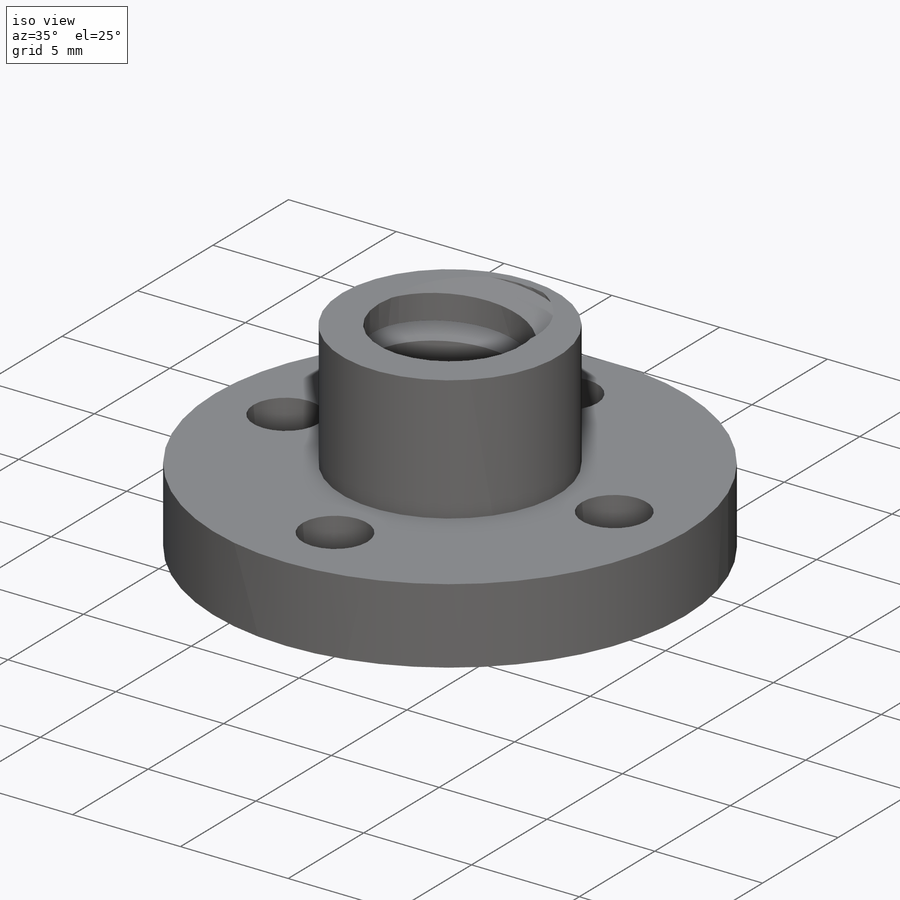
[diagram: iso view]
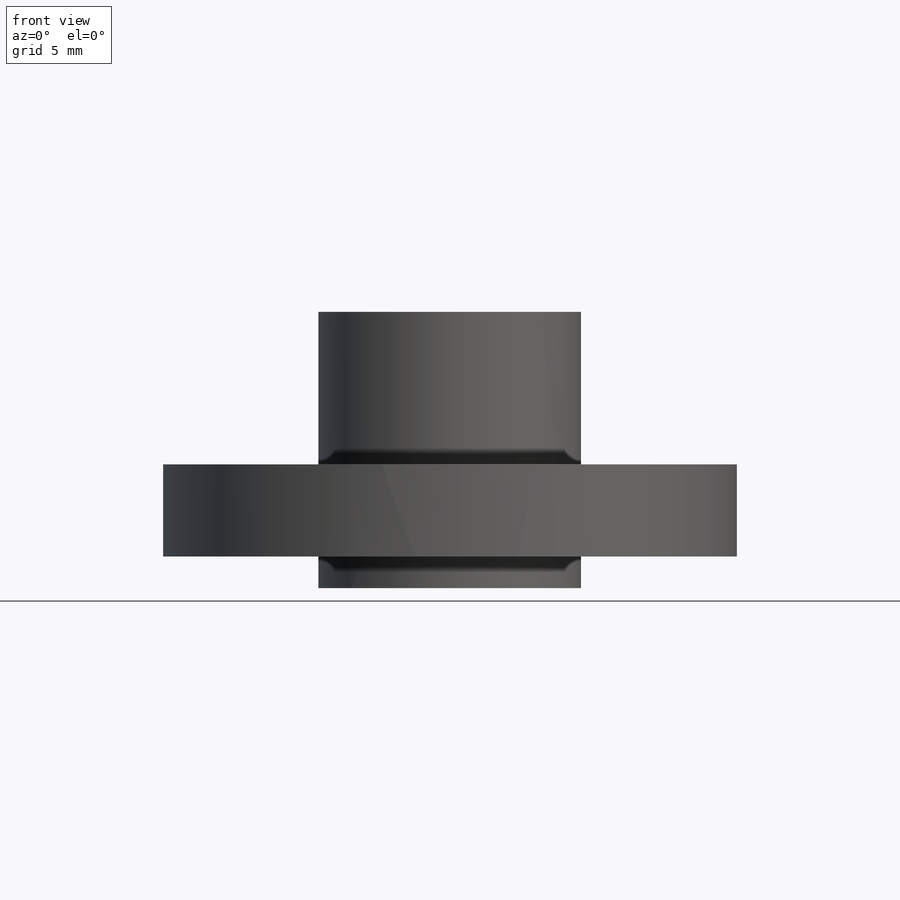
[diagram: front view]
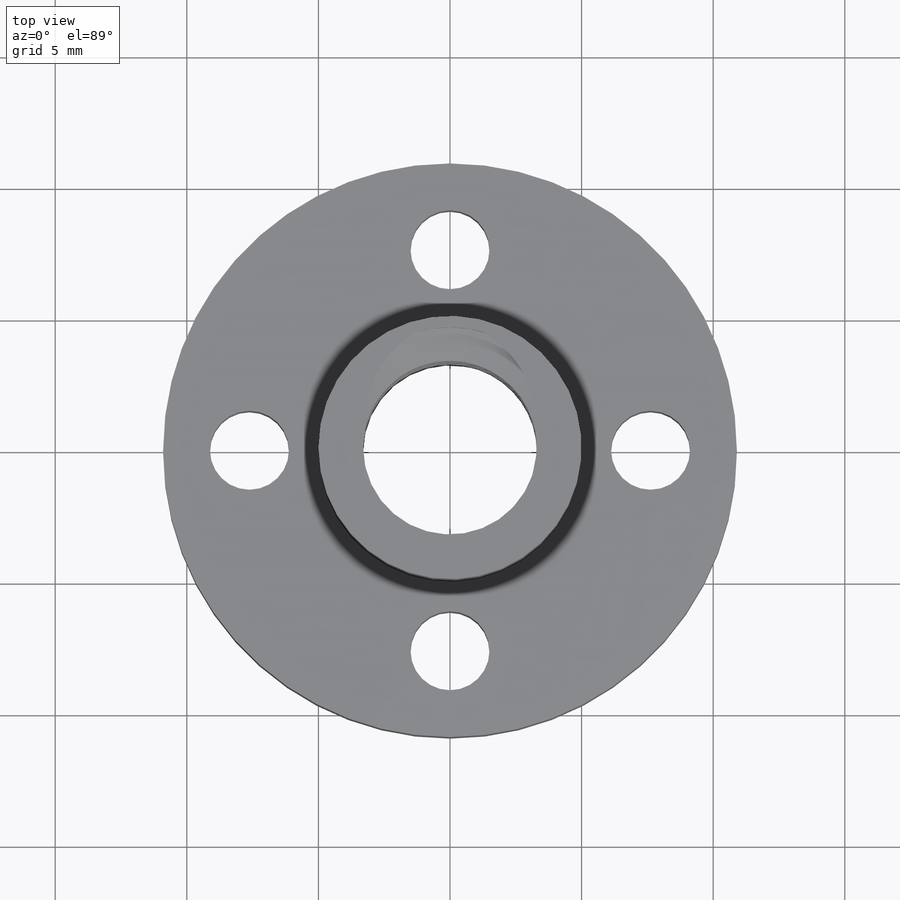
[diagram: top view]
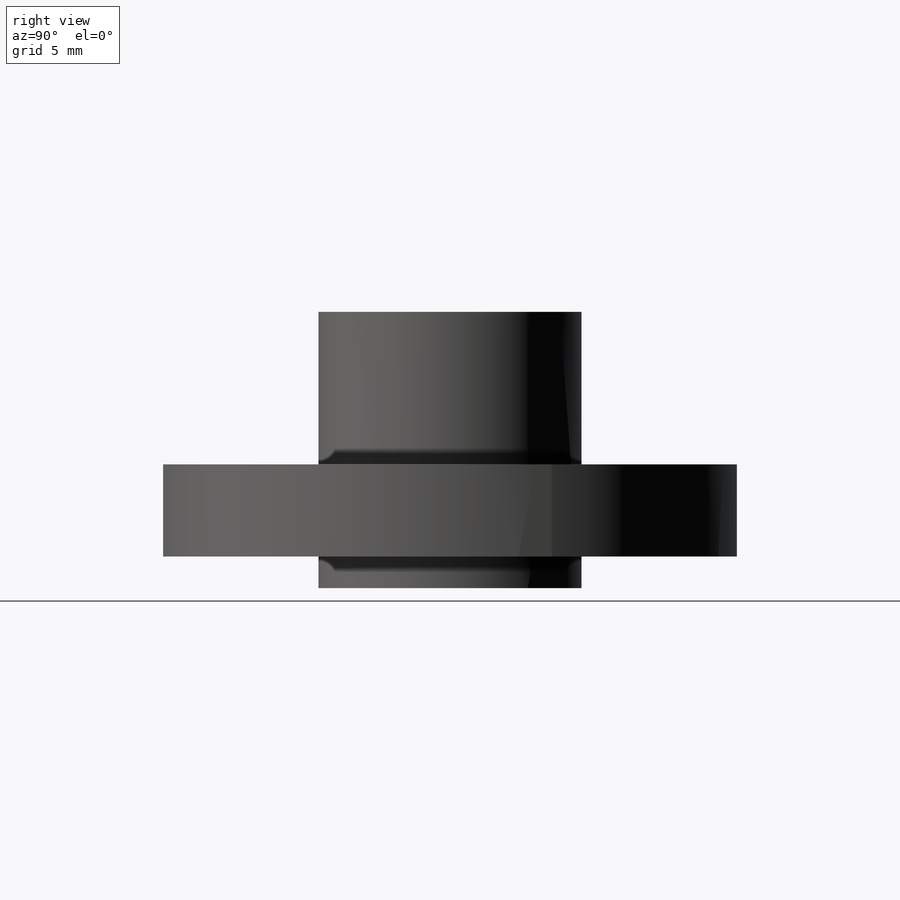
[diagram: right view]
SOLIDWORKS PART (.sldprt)
format: sldprt  version: not decoded by parser v0  size: 351,232 bytes
history: native  units: mm
features: plane x4, sketch x4, material x1, revolve x1, cut_extrude x1, helix x1, sweep x1 (+10 scaffold rows collapsed)
feature tree (23):
  scaffold x10  (default folders/planes/origin — collapsed)
  material  "Material <sin especificar>"
  plane  "Alzado"
  plane  "Planta"
  plane  "Vista lateral"
  sketch  "Croquis1"  dims[c1.D1=1.7mm c1.D2=3.5mm c1.D3=10.5mm c1.D4=5.9mm c1.D5=~2.072081mm c1.D6=5.0mm c2.D5=5.0mm]
  revolve  "Revolución1"  Angle=360deg
  sketch  "Croquis3"  dims[D3=3.0mm D1=7.62mm D2=4.0]
  cut_extrude  "Cortar-Extruir1"  [1 undecoded]
  plane  "Plano1"  Offset=10mm
  sketch  "Croquis4"
  helix  "Hélice/Espiral1"  Pitch=30mm
  sketch  "Croquis5"  dims[c1.D1=0.9mm c1.D2=1.5mm c1.D3=~1.280589mm c2.D3=~5.056922mm c2.D1=0.98mm c2.D4=~0.364102mm]
  sweep  "Cortar-Barrer1"
decode coverage: 5 of 8 modeling features carry decoded parameters
note: ~ marks probable driven/reference dimensions
note: 1 parameter value undecoded
note: suppression state not decoded; provenance and decode notes live in map.json
